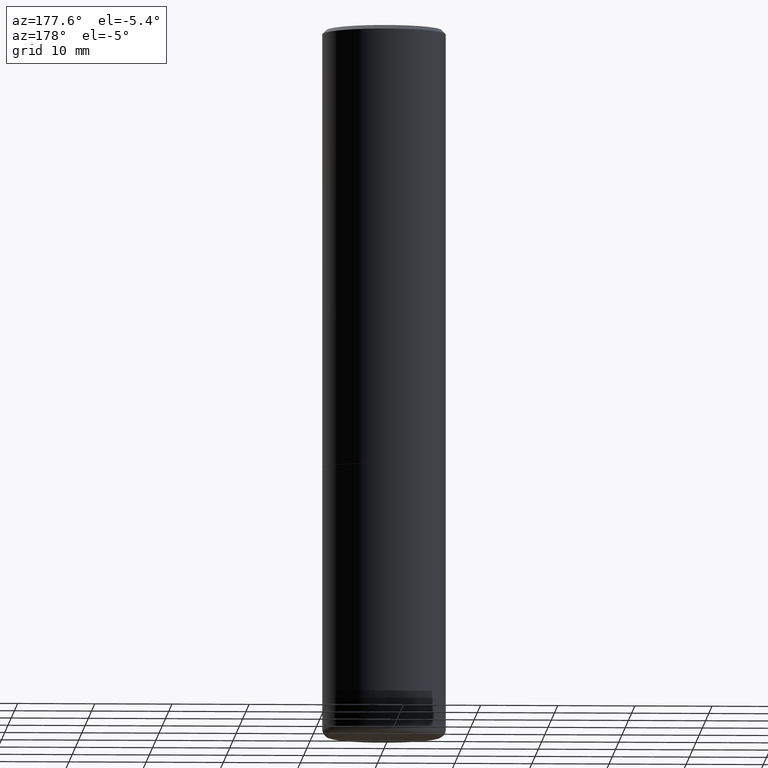
[diagram: clean part render]
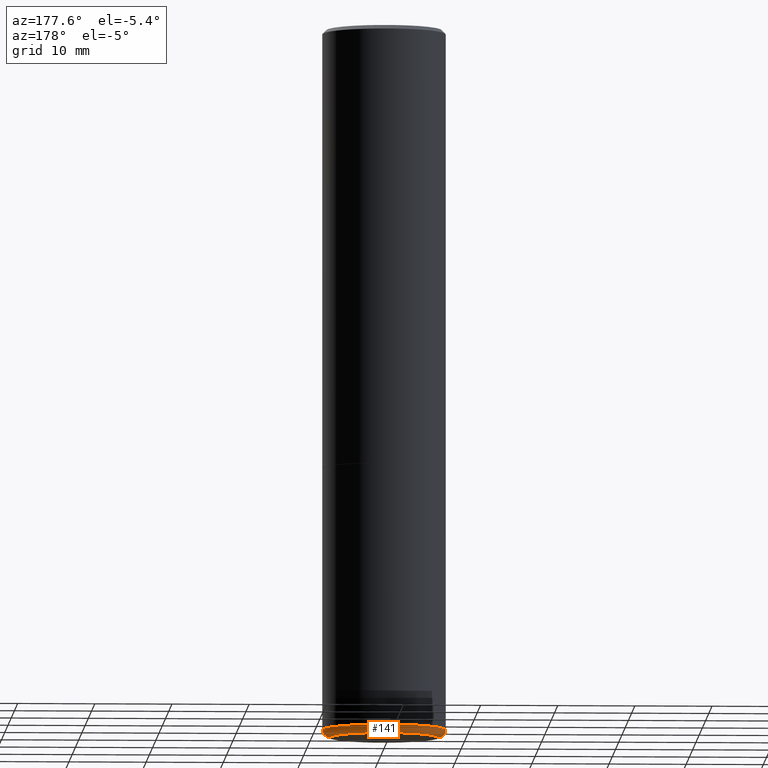
[diagram: same view with one face highlighted and labeled with its STEP entity id]
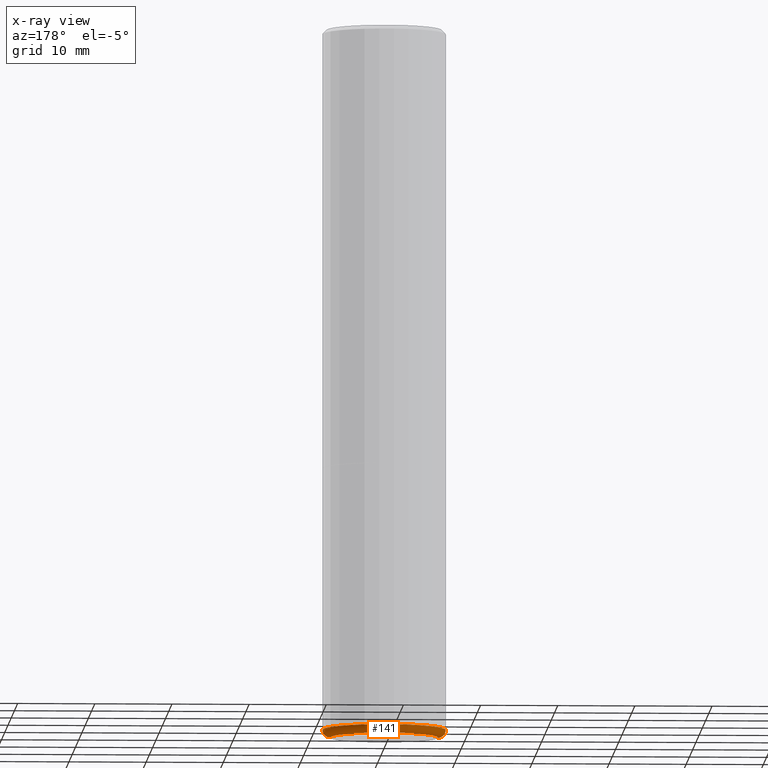
[diagram: x-ray of the same camera — body ghosted, the highlighted face saturated]
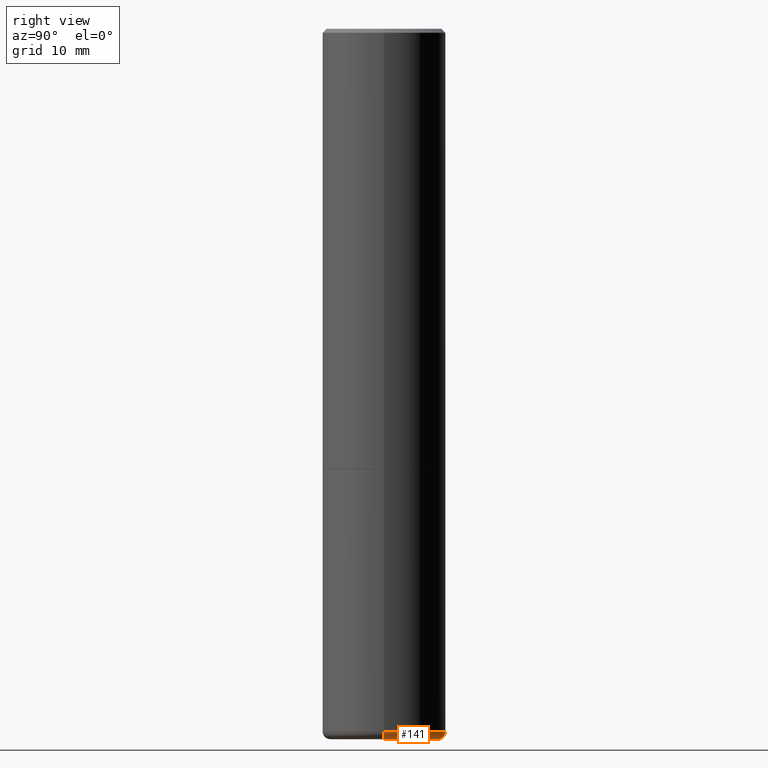
[diagram: same view with one face highlighted and labeled with its STEP entity id]
A machine part, auxiliary view. The second image highlights one B-rep face of the part: STEP entity #141.
The next image is the same camera in x-ray: the body ghosted, the highlighted face saturated — about 0% of this face is hidden behind the body in this view.
A second angle (right view) of the same face is appended — the face is thin or edge-on in the first view.
In plain terms, the highlighted toroidal blend (fillet) surface has major radius 6.999 mm and minor (blend) radius 1.0008 mm.
Its self-contained STEP definition (entity closure, byte-faithful):
#10 = ORIENTED_EDGE ( 'NONE', *, *, #82, .T. ) ;
#13 = AXIS2_PLACEMENT_3D ( 'NONE', #319, #157, #249 ) ;
#14 = VERTEX_POINT ( 'NONE', #410 ) ;
#31 = CIRCLE ( 'NONE', #266, 0.03940000000000005997 ) ;
#34 = EDGE_CURVE ( 'NONE', #38, #234, #85, .T. ) ;
#37 = TOROIDAL_SURFACE ( 'NONE', #13, 0.2755500000000000171, 0.03940000000000005997 ) ;
#38 = VERTEX_POINT ( 'NONE', #281 ) ;
#40 = ORIENTED_EDGE ( 'NONE', *, *, #34, .T. ) ;
#47 = EDGE_CURVE ( 'NONE', #38, #300, #31, .T. ) ;
#71 = CARTESIAN_POINT ( 'NONE',  ( 0.3149500000000000077, -1.470786513987673949E-14, -3.582599999999999785 ) ) ;
#82 = EDGE_CURVE ( 'NONE', #234, #14, #176, .T. ) ;
#85 = CIRCLE ( 'NONE', #214, 0.2755500000000000171 ) ;
#88 = CARTESIAN_POINT ( 'NONE',  ( 0.2755500000000000171, -1.443273641037590422E-14, -3.582599999999999785 ) ) ;
#98 = CARTESIAN_POINT ( 'NONE',  ( 8.761136545038868759E-29, -1.250858104453945120E-14, -3.582599999999999785 ) ) ;
#101 = CARTESIAN_POINT ( 'NONE',  ( -0.2755500000000000171, -1.047948579958296492E-14, -3.621999999999999886 ) ) ;
#122 = AXIS2_PLACEMENT_3D ( 'NONE', #98, #390, #295 ) ;
#141 = ADVANCED_FACE ( 'NONE', ( #348 ), #37, .T. ) ;
#151 = DIRECTION ( 'NONE',  ( -6.982962677686266711E-15, -1.000000000000000000, 3.491481338843145583E-15 ) ) ;
#157 = DIRECTION ( 'NONE',  ( -2.445468806185136597E-29, 3.491481338843145583E-15, 1.000000000000000000 ) ) ;
#176 = CIRCLE ( 'NONE', #397, 0.03940000000000005997 ) ;
#200 = EDGE_LOOP ( 'NONE', ( #40, #10, #362, #265 ) ) ;
#209 = DIRECTION ( 'NONE',  ( -2.445468806185136597E-29, 3.491481338843145583E-15, 1.000000000000000000 ) ) ;
#214 = AXIS2_PLACEMENT_3D ( 'NONE', #317, #209, #241 ) ;
#234 = VERTEX_POINT ( 'NONE', #101 ) ;
#236 = DIRECTION ( 'NONE',  ( -1.000000000000000000, 7.105427357601014480E-15, 0.000000000000000000 ) ) ;
#241 = DIRECTION ( 'NONE',  ( 1.000000000000000000, -6.982962677686268288E-15, 0.000000000000000000 ) ) ;
#249 = DIRECTION ( 'NONE',  ( 1.000000000000000000, -6.982962677686268288E-15, 4.883557194083114022E-29 ) ) ;
#265 = ORIENTED_EDGE ( 'NONE', *, *, #47, .F. ) ;
#266 = AXIS2_PLACEMENT_3D ( 'NONE', #88, #151, #347 ) ;
#273 = DIRECTION ( 'NONE',  ( 7.105427357601001859E-15, 1.000000000000000000, -3.491481338843145583E-15 ) ) ;
#281 = CARTESIAN_POINT ( 'NONE',  ( 0.2755500000000000171, -1.457030077512632343E-14, -3.621999999999999886 ) ) ;
#295 = DIRECTION ( 'NONE',  ( 1.000000000000000000, -6.982962677686263555E-15, 0.000000000000000000 ) ) ;
#300 = VERTEX_POINT ( 'NONE', #71 ) ;
#301 = CIRCLE ( 'NONE', #122, 0.3149500000000000077 ) ;
#317 = CARTESIAN_POINT ( 'NONE',  ( 8.857488016002564476E-29, -1.264614540928987199E-14, -3.621999999999999886 ) ) ;
#319 = CARTESIAN_POINT ( 'NONE',  ( 8.761136545038868759E-29, -1.250858104453945120E-14, -3.582599999999999785 ) ) ;
#347 = DIRECTION ( 'NONE',  ( 1.000000000000000000, -6.982962677686267499E-15, 0.000000000000000000 ) ) ;
#348 = FACE_OUTER_BOUND ( 'NONE', #200, .T. ) ;
#362 = ORIENTED_EDGE ( 'NONE', *, *, #396, .F. ) ;
#374 = CARTESIAN_POINT ( 'NONE',  ( -0.2755500000000000171, -1.055068053615249541E-14, -3.582599999999999785 ) ) ;
#390 = DIRECTION ( 'NONE',  ( -2.445468806185136597E-29, 3.491481338843145583E-15, 1.000000000000000000 ) ) ;
#396 = EDGE_CURVE ( 'NONE', #300, #14, #301, .T. ) ;
#397 = AXIS2_PLACEMENT_3D ( 'NONE', #374, #273, #236 ) ;
#410 = CARTESIAN_POINT ( 'NONE',  ( -0.3149500000000000077, -1.027072669826301679E-14, -3.582599999999999785 ) ) ;